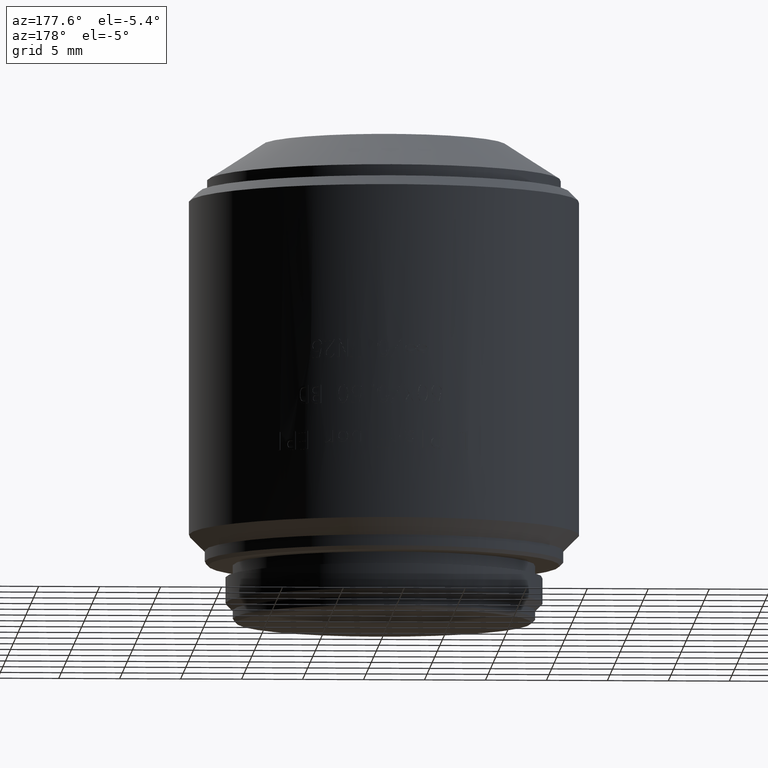
[diagram: clean part render]
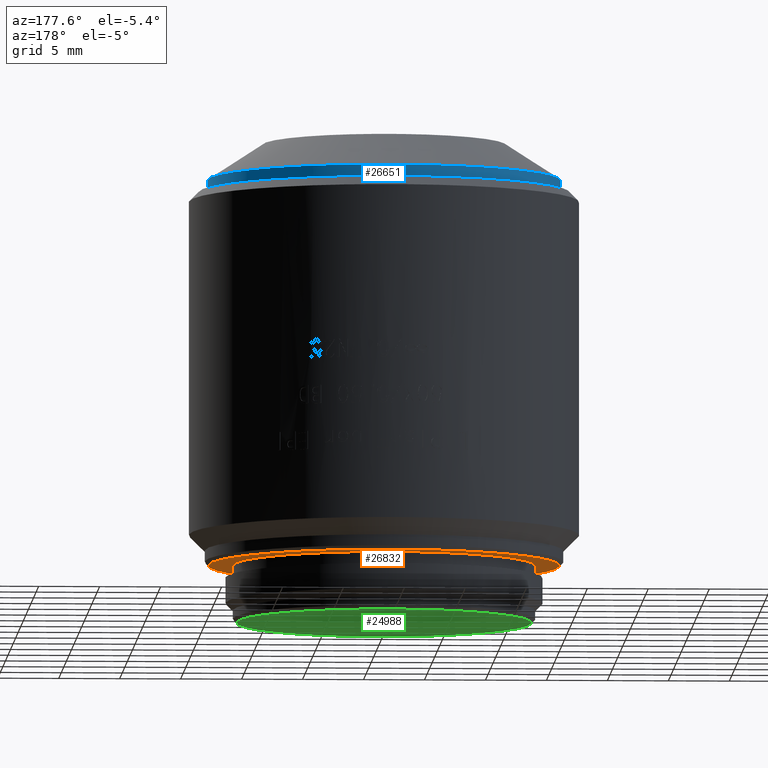
[diagram: same view with three faces highlighted in distinct colors, each labeled with its STEP entity id]
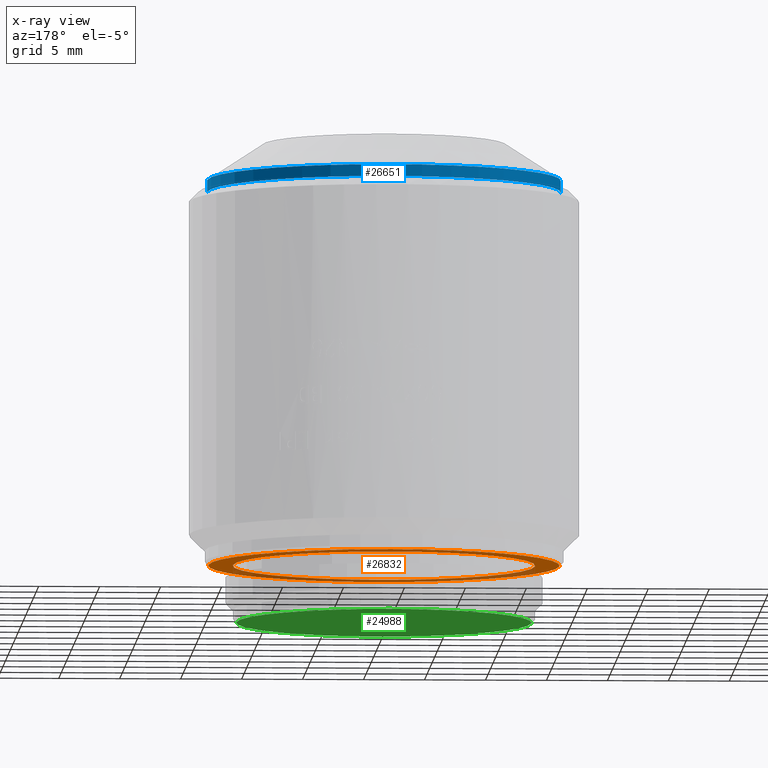
[diagram: x-ray of the same camera — body ghosted, the three highlighted faces saturated]
A machine part, auxiliary view with three faces highlighted in distinct colors.
The next image is the same camera in x-ray (body ghosted, the three faces saturated) — at least one of them is partly hidden behind the body in this view.
Their STEP definitions:

[orange] entity #26832 — the highlighted planar face has unit normal (0, 0, -1).
#265 = DIRECTION ( 'NONE',  ( 0.000000000000000000, 0.000000000000000000, -1.000000000000000000 ) ) ;
#697 = DIRECTION ( 'NONE',  ( 0.000000000000000000, 0.000000000000000000, -1.000000000000000000 ) ) ;
#2099 = CIRCLE ( 'NONE', #27153, 14.40000000000000036 ) ;
#2457 = FACE_BOUND ( 'NONE', #11383, .T. ) ;
#2886 = AXIS2_PLACEMENT_3D ( 'NONE', #11352, #9286, #7094 ) ;
#5160 = DIRECTION ( 'NONE',  ( -1.000000000000000000, 0.000000000000000000, 0.000000000000000000 ) ) ;
#5177 = AXIS2_PLACEMENT_3D ( 'NONE', #26235, #9017, #5160 ) ;
#5527 = ORIENTED_EDGE ( 'NONE', *, *, #9960, .T. ) ;
#6428 = AXIS2_PLACEMENT_3D ( 'NONE', #25179, #265, #17042 ) ;
#7094 = DIRECTION ( 'NONE',  ( -1.000000000000000000, 0.000000000000000000, 0.000000000000000000 ) ) ;
#7979 = VERTEX_POINT ( 'NONE', #22533 ) ;
#9017 = DIRECTION ( 'NONE',  ( 0.000000000000000000, 0.000000000000000000, -1.000000000000000000 ) ) ;
#9286 = DIRECTION ( 'NONE',  ( 0.000000000000000000, 0.000000000000000000, -1.000000000000000000 ) ) ;
#9921 = DIRECTION ( 'NONE',  ( 0.000000000000000000, 0.000000000000000000, -1.000000000000000000 ) ) ;
#9960 = EDGE_CURVE ( 'NONE', #20674, #7979, #20322, .T. ) ;
#10441 = PLANE ( 'NONE',  #6428 ) ;
#11352 = CARTESIAN_POINT ( 'NONE',  ( 0.000000000000000000, 0.000000000000000000, 4.700000000000000178 ) ) ;
#11383 = EDGE_LOOP ( 'NONE', ( #12154, #14211 ) ) ;
#12137 = VERTEX_POINT ( 'NONE', #17321 ) ;
#12154 = ORIENTED_EDGE ( 'NONE', *, *, #16051, .F. ) ;
#13201 = CARTESIAN_POINT ( 'NONE',  ( 12.40000000000000036, 0.000000000000000000, 4.700000000000000178 ) ) ;
#13202 = DIRECTION ( 'NONE',  ( -1.000000000000000000, 0.000000000000000000, 0.000000000000000000 ) ) ;
#14211 = ORIENTED_EDGE ( 'NONE', *, *, #18915, .F. ) ;
#15706 = CARTESIAN_POINT ( 'NONE',  ( 0.000000000000000000, 0.000000000000000000, 4.700000000000000178 ) ) ;
#15993 = CARTESIAN_POINT ( 'NONE',  ( -14.40000000000000036, 1.781861092759398693E-15, 4.700000000000000178 ) ) ;
#16051 = EDGE_CURVE ( 'NONE', #17612, #12137, #16958, .T. ) ;
#16377 = AXIS2_PLACEMENT_3D ( 'NONE', #21483, #697, #13202 ) ;
#16643 = EDGE_LOOP ( 'NONE', ( #25392, #5527 ) ) ;
#16958 = CIRCLE ( 'NONE', #2886, 12.40000000000000036 ) ;
#17042 = DIRECTION ( 'NONE',  ( 0.000000000000000000, -1.000000000000000000, 0.000000000000000000 ) ) ;
#17045 = CIRCLE ( 'NONE', #5177, 12.40000000000000036 ) ;
#17321 = CARTESIAN_POINT ( 'NONE',  ( -12.40000000000000036, 1.518562030942717967E-15, 4.700000000000000178 ) ) ;
#17612 = VERTEX_POINT ( 'NONE', #13201 ) ;
#18915 = EDGE_CURVE ( 'NONE', #12137, #17612, #17045, .T. ) ;
#19104 = FACE_OUTER_BOUND ( 'NONE', #16643, .T. ) ;
#20322 = CIRCLE ( 'NONE', #16377, 14.40000000000000036 ) ;
#20674 = VERTEX_POINT ( 'NONE', #15993 ) ;
#21483 = CARTESIAN_POINT ( 'NONE',  ( 0.000000000000000000, 0.000000000000000000, 4.700000000000000178 ) ) ;
#22533 = CARTESIAN_POINT ( 'NONE',  ( 14.40000000000000036, 0.000000000000000000, 4.700000000000000178 ) ) ;
#25179 = CARTESIAN_POINT ( 'NONE',  ( 0.000000000000000000, 0.000000000000000000, 4.700000000000000178 ) ) ;
#25392 = ORIENTED_EDGE ( 'NONE', *, *, #26100, .T. ) ;
#26100 = EDGE_CURVE ( 'NONE', #7979, #20674, #2099, .T. ) ;
#26235 = CARTESIAN_POINT ( 'NONE',  ( 0.000000000000000000, 0.000000000000000000, 4.700000000000000178 ) ) ;
#26738 = DIRECTION ( 'NONE',  ( -1.000000000000000000, 0.000000000000000000, 0.000000000000000000 ) ) ;
#26832 = ADVANCED_FACE ( 'NONE', ( #2457, #19104 ), #10441, .T. ) ;
#27153 = AXIS2_PLACEMENT_3D ( 'NONE', #15706, #9921, #26738 ) ;

[blue] entity #26651 — the highlighted cylindrical surface (partial cylindrical patch) has radius 14.5 mm, axis along (0, 0, 1).
#273 = EDGE_LOOP ( 'NONE', ( #18446, #8760, #14177, #17542 ) ) ;
#1595 = AXIS2_PLACEMENT_3D ( 'NONE', #24376, #26450, #24240 ) ;
#3484 = LINE ( 'NONE', #12138, #3496 ) ;
#3496 = VECTOR ( 'NONE', #26893, 1000.000000000000000 ) ;
#4111 = FACE_OUTER_BOUND ( 'NONE', #273, .T. ) ;
#4175 = CARTESIAN_POINT ( 'NONE',  ( 14.50000000000000888, 1.775737858763663198E-15, 36.37800000000000011 ) ) ;
#4614 = EDGE_CURVE ( 'NONE', #25306, #20292, #20186, .T. ) ;
#5145 = EDGE_CURVE ( 'NONE', #25306, #23865, #3484, .T. ) ;
#7058 = DIRECTION ( 'NONE',  ( 0.000000000000000000, 0.000000000000000000, 1.000000000000000000 ) ) ;
#7285 = CIRCLE ( 'NONE', #1595, 14.50000000000000000 ) ;
#7505 = DIRECTION ( 'NONE',  ( 1.000000000000000000, 0.000000000000000000, 0.000000000000000000 ) ) ;
#8357 = EDGE_CURVE ( 'NONE', #20292, #21264, #9516, .T. ) ;
#8646 = CYLINDRICAL_SURFACE ( 'NONE', #17415, 14.50000000000000000 ) ;
#8760 = ORIENTED_EDGE ( 'NONE', *, *, #8357, .T. ) ;
#8780 = CARTESIAN_POINT ( 'NONE',  ( 0.000000000000000000, 0.000000000000000000, 35.39999999999999858 ) ) ;
#9516 = LINE ( 'NONE', #23994, #14931 ) ;
#12138 = CARTESIAN_POINT ( 'NONE',  ( 14.50000000000000000, 0.000000000000000000, 35.39999999999999858 ) ) ;
#12492 = DIRECTION ( 'NONE',  ( 0.000000000000000000, 0.000000000000000000, 1.000000000000000000 ) ) ;
#14177 = ORIENTED_EDGE ( 'NONE', *, *, #15195, .T. ) ;
#14931 = VECTOR ( 'NONE', #7058, 1000.000000000000000 ) ;
#15195 = EDGE_CURVE ( 'NONE', #21264, #23865, #7285, .T. ) ;
#15492 = CARTESIAN_POINT ( 'NONE',  ( 0.000000000000000000, 0.000000000000000000, 35.39999999999999858 ) ) ;
#17415 = AXIS2_PLACEMENT_3D ( 'NONE', #8780, #12492, #25311 ) ;
#17465 = CARTESIAN_POINT ( 'NONE',  ( -14.50000000000000888, 0.000000000000000000, 36.37800000000000011 ) ) ;
#17542 = ORIENTED_EDGE ( 'NONE', *, *, #5145, .F. ) ;
#17562 = AXIS2_PLACEMENT_3D ( 'NONE', #15492, #19480, #7505 ) ;
#18446 = ORIENTED_EDGE ( 'NONE', *, *, #4614, .T. ) ;
#19480 = DIRECTION ( 'NONE',  ( 0.000000000000000000, 0.000000000000000000, 1.000000000000000000 ) ) ;
#20186 = CIRCLE ( 'NONE', #17562, 14.50000000000000000 ) ;
#20292 = VERTEX_POINT ( 'NONE', #25931 ) ;
#21264 = VERTEX_POINT ( 'NONE', #17465 ) ;
#23865 = VERTEX_POINT ( 'NONE', #4175 ) ;
#23966 = CARTESIAN_POINT ( 'NONE',  ( 14.50000000000000000, 0.000000000000000000, 35.39999999999999858 ) ) ;
#23994 = CARTESIAN_POINT ( 'NONE',  ( -14.50000000000000000, 1.775737858763662015E-15, 35.39999999999999858 ) ) ;
#24240 = DIRECTION ( 'NONE',  ( 1.000000000000000000, 0.000000000000000000, 0.000000000000000000 ) ) ;
#24376 = CARTESIAN_POINT ( 'NONE',  ( 0.000000000000000000, 0.000000000000000000, 36.37800000000000011 ) ) ;
#25306 = VERTEX_POINT ( 'NONE', #23966 ) ;
#25311 = DIRECTION ( 'NONE',  ( 1.000000000000000000, 0.000000000000000000, 0.000000000000000000 ) ) ;
#25931 = CARTESIAN_POINT ( 'NONE',  ( -14.50000000000000000, 1.775737858763662015E-15, 35.39999999999999858 ) ) ;
#26450 = DIRECTION ( 'NONE',  ( 0.000000000000000000, 0.000000000000000000, -1.000000000000000000 ) ) ;
#26651 = ADVANCED_FACE ( 'NONE', ( #4111 ), #8646, .T. ) ;
#26893 = DIRECTION ( 'NONE',  ( 0.000000000000000000, 0.000000000000000000, 1.000000000000000000 ) ) ;

[green] entity #24988 — the highlighted planar face has unit normal (0, 0, 1).
#2194 = CARTESIAN_POINT ( 'NONE',  ( 0.000000000000000000, 0.000000000000000000, 0.000000000000000000 ) ) ;
#3147 = EDGE_LOOP ( 'NONE', ( #9350, #14891 ) ) ;
#4457 = CIRCLE ( 'NONE', #19830, 12.09999999999999964 ) ;
#4709 = AXIS2_PLACEMENT_3D ( 'NONE', #2194, #17049, #16646 ) ;
#5615 = DIRECTION ( 'NONE',  ( 1.000000000000000000, 0.000000000000000000, 0.000000000000000000 ) ) ;
#8240 = AXIS2_PLACEMENT_3D ( 'NONE', #8417, #25495, #10347 ) ;
#8417 = CARTESIAN_POINT ( 'NONE',  ( 0.000000000000000000, 0.000000000000000000, 0.000000000000000000 ) ) ;
#9350 = ORIENTED_EDGE ( 'NONE', *, *, #14679, .T. ) ;
#10216 = VERTEX_POINT ( 'NONE', #15376 ) ;
#10347 = DIRECTION ( 'NONE',  ( 1.000000000000000000, 0.000000000000000000, 0.000000000000000000 ) ) ;
#10480 = PLANE ( 'NONE',  #8240 ) ;
#11718 = CIRCLE ( 'NONE', #4709, 12.09999999999999964 ) ;
#14679 = EDGE_CURVE ( 'NONE', #26680, #10216, #4457, .T. ) ;
#14886 = FACE_OUTER_BOUND ( 'NONE', #3147, .T. ) ;
#14891 = ORIENTED_EDGE ( 'NONE', *, *, #25573, .T. ) ;
#15376 = CARTESIAN_POINT ( 'NONE',  ( -12.09999999999999964, 1.500192328955507734E-15, 0.000000000000000000 ) ) ;
#16073 = CARTESIAN_POINT ( 'NONE',  ( 0.000000000000000000, 0.000000000000000000, 0.000000000000000000 ) ) ;
#16220 = DIRECTION ( 'NONE',  ( 0.000000000000000000, 0.000000000000000000, -1.000000000000000000 ) ) ;
#16646 = DIRECTION ( 'NONE',  ( 1.000000000000000000, 0.000000000000000000, 0.000000000000000000 ) ) ;
#17049 = DIRECTION ( 'NONE',  ( 0.000000000000000000, 0.000000000000000000, -1.000000000000000000 ) ) ;
#17182 = CARTESIAN_POINT ( 'NONE',  ( 12.09999999999999964, 0.000000000000000000, 0.000000000000000000 ) ) ;
#19830 = AXIS2_PLACEMENT_3D ( 'NONE', #16073, #16220, #5615 ) ;
#24988 = ADVANCED_FACE ( 'NONE', ( #14886 ), #10480, .F. ) ;
#25495 = DIRECTION ( 'NONE',  ( 0.000000000000000000, 0.000000000000000000, 1.000000000000000000 ) ) ;
#25573 = EDGE_CURVE ( 'NONE', #10216, #26680, #11718, .T. ) ;
#26680 = VERTEX_POINT ( 'NONE', #17182 ) ;